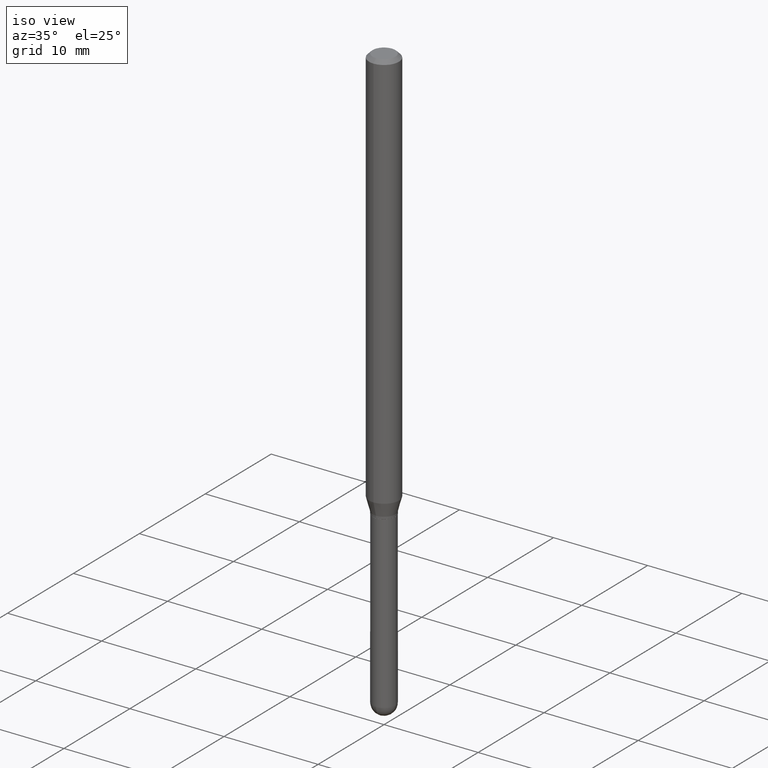
[diagram: clean part render]
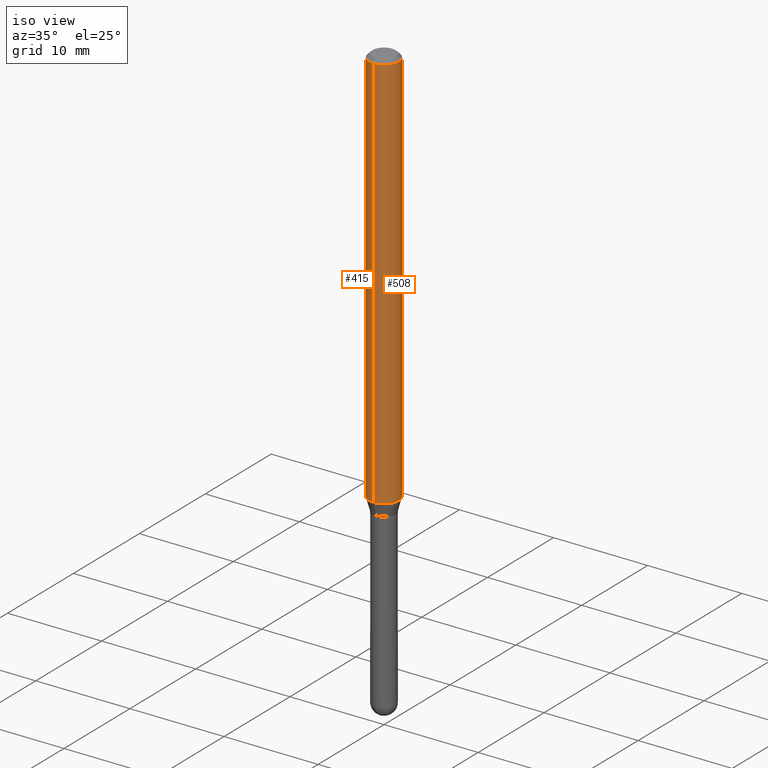
[diagram: same view with one multi-face feature highlighted, each face labeled with its STEP entity id]
A machine part, iso view. The highlighted faces form ONE feature: a constant-radius fillet chain: 2 tangent blend faces with common blend radius 1.5875 mm. The faces share edges in the B-rep.
Their STEP definitions:
[1] entity #508 (Cylinder):
#5 = DIRECTION ( 'NONE',  ( -2.445469653378123056E-29, 3.491480125614569646E-15, 1.000000000000000000 ) ) ;
#10 = CARTESIAN_POINT ( 'NONE',  ( 3.668204480067187193E-31, -5.237220188421857822E-17, -0.01500000000000000812 ) ) ;
#24 = EDGE_CURVE ( 'NONE', #131, #220, #326, .T. ) ;
#32 = DIRECTION ( 'NONE',  ( -6.982962677686265922E-15, -1.000000000000000000, 4.370956789862821150E-15 ) ) ;
#37 = ORIENTED_EDGE ( 'NONE', *, *, #375, .F. ) ;
#68 = AXIS2_PLACEMENT_3D ( 'NONE', #236, #5, #32 ) ;
#91 = CARTESIAN_POINT ( 'NONE',  ( -4.364351673553505007E-16, -0.06250000000000581479, -1.674019237886465561 ) ) ;
#95 = DIRECTION ( 'NONE',  ( -2.445469653378123056E-29, 3.491480125614569646E-15, 1.000000000000000000 ) ) ;
#100 = CARTESIAN_POINT ( 'NONE',  ( 4.440892098500625669E-16, 0.06250000000000000000, -2.182175078509106029E-16 ) ) ;
#117 = CIRCLE ( 'NONE', #432, 0.06250000000000000000 ) ;
#118 = VERTEX_POINT ( 'NONE', #296 ) ;
#131 = VERTEX_POINT ( 'NONE', #91 ) ;
#136 = DIRECTION ( 'NONE',  ( -6.982962677686265922E-15, -1.000000000000000000, 3.491480125614569646E-15 ) ) ;
#169 = VECTOR ( 'NONE', #216, 39.37007874015748143 ) ;
#201 = EDGE_LOOP ( 'NONE', ( #428, #337, #37, #280 ) ) ;
#212 = CYLINDRICAL_SURFACE ( 'NONE', #295, 0.06250000000000000000 ) ;
#215 = EDGE_CURVE ( 'NONE', #332, #118, #262, .T. ) ;
#216 = DIRECTION ( 'NONE',  ( -2.445469653378123056E-29, 3.491480125614569646E-15, 1.000000000000000000 ) ) ;
#220 = VERTEX_POINT ( 'NONE', #346 ) ;
#225 = DIRECTION ( 'NONE',  ( -2.445469653378123056E-29, 3.491480125614569646E-15, 1.000000000000000000 ) ) ;
#236 = CARTESIAN_POINT ( 'NONE',  ( 4.093763245422525431E-29, -5.844804898977045154E-15, -1.674019237886465783 ) ) ;
#241 = DIRECTION ( 'NONE',  ( -2.445469653378123056E-29, 3.491480125614569646E-15, 1.000000000000000000 ) ) ;
#252 = FACE_OUTER_BOUND ( 'NONE', #201, .T. ) ;
#262 = LINE ( 'NONE', #100, #270 ) ;
#270 = VECTOR ( 'NONE', #225, 39.37007874015748143 ) ;
#280 = ORIENTED_EDGE ( 'NONE', *, *, #24, .F. ) ;
#290 = CARTESIAN_POINT ( 'NONE',  ( -4.364351673553916201E-16, -0.06250000000000000000, 2.182175078509106029E-16 ) ) ;
#295 = AXIS2_PLACEMENT_3D ( 'NONE', #329, #95, #136 ) ;
#296 = CARTESIAN_POINT ( 'NONE',  ( 4.440892098501038342E-16, 0.06249999999999995143, -0.01500000000000022669 ) ) ;
#307 = CARTESIAN_POINT ( 'NONE',  ( 4.440892098501036369E-16, 0.06249999999999418521, -1.674019237886466227 ) ) ;
#326 = LINE ( 'NONE', #290, #169 ) ;
#329 = CARTESIAN_POINT ( 'NONE',  ( 0.000000000000000000, 0.000000000000000000, 0.000000000000000000 ) ) ;
#332 = VERTEX_POINT ( 'NONE', #307 ) ;
#337 = ORIENTED_EDGE ( 'NONE', *, *, #215, .T. ) ;
#346 = CARTESIAN_POINT ( 'NONE',  ( -4.364351673553912750E-16, -0.06250000000000005551, -0.01499999999999979128 ) ) ;
#356 = CIRCLE ( 'NONE', #68, 0.06250000000000000000 ) ;
#375 = EDGE_CURVE ( 'NONE', #220, #118, #117, .T. ) ;
#385 = EDGE_CURVE ( 'NONE', #131, #332, #356, .T. ) ;
#391 = DIRECTION ( 'NONE',  ( -6.982962677686265922E-15, -1.000000000000000000, 3.483106191921935554E-15 ) ) ;
#428 = ORIENTED_EDGE ( 'NONE', *, *, #385, .T. ) ;
#432 = AXIS2_PLACEMENT_3D ( 'NONE', #10, #241, #391 ) ;
#508 = ADVANCED_FACE ( 'NONE', ( #252 ), #212, .T. ) ;
[2] entity #415 (Cylinder):
#2 = EDGE_LOOP ( 'NONE', ( #495, #195, #92, #414 ) ) ;
#24 = EDGE_CURVE ( 'NONE', #131, #220, #326, .T. ) ;
#35 = FACE_OUTER_BOUND ( 'NONE', #2, .T. ) ;
#40 = DIRECTION ( 'NONE',  ( -2.445469653378123056E-29, 3.491480125614569646E-15, 1.000000000000000000 ) ) ;
#61 = AXIS2_PLACEMENT_3D ( 'NONE', #429, #40, #470 ) ;
#80 = EDGE_CURVE ( 'NONE', #332, #131, #344, .T. ) ;
#89 = EDGE_CURVE ( 'NONE', #118, #220, #198, .T. ) ;
#91 = CARTESIAN_POINT ( 'NONE',  ( -4.364351673553505007E-16, -0.06250000000000581479, -1.674019237886465561 ) ) ;
#92 = ORIENTED_EDGE ( 'NONE', *, *, #24, .T. ) ;
#100 = CARTESIAN_POINT ( 'NONE',  ( 4.440892098500625669E-16, 0.06250000000000000000, -2.182175078509106029E-16 ) ) ;
#118 = VERTEX_POINT ( 'NONE', #296 ) ;
#126 = DIRECTION ( 'NONE',  ( -2.445469653378123056E-29, 3.491480125614569646E-15, 1.000000000000000000 ) ) ;
#131 = VERTEX_POINT ( 'NONE', #91 ) ;
#169 = VECTOR ( 'NONE', #216, 39.37007874015748143 ) ;
#195 = ORIENTED_EDGE ( 'NONE', *, *, #80, .T. ) ;
#198 = CIRCLE ( 'NONE', #503, 0.06250000000000000000 ) ;
#215 = EDGE_CURVE ( 'NONE', #332, #118, #262, .T. ) ;
#216 = DIRECTION ( 'NONE',  ( -2.445469653378123056E-29, 3.491480125614569646E-15, 1.000000000000000000 ) ) ;
#220 = VERTEX_POINT ( 'NONE', #346 ) ;
#225 = DIRECTION ( 'NONE',  ( -2.445469653378123056E-29, 3.491480125614569646E-15, 1.000000000000000000 ) ) ;
#262 = LINE ( 'NONE', #100, #270 ) ;
#270 = VECTOR ( 'NONE', #225, 39.37007874015748143 ) ;
#290 = CARTESIAN_POINT ( 'NONE',  ( -4.364351673553916201E-16, -0.06250000000000000000, 2.182175078509106029E-16 ) ) ;
#296 = CARTESIAN_POINT ( 'NONE',  ( 4.440892098501038342E-16, 0.06249999999999995143, -0.01500000000000022669 ) ) ;
#300 = DIRECTION ( 'NONE',  ( -6.982962677686265922E-15, -1.000000000000000000, 3.483106191921935554E-15 ) ) ;
#307 = CARTESIAN_POINT ( 'NONE',  ( 4.440892098501036369E-16, 0.06249999999999418521, -1.674019237886466227 ) ) ;
#313 = CYLINDRICAL_SURFACE ( 'NONE', #61, 0.06250000000000000000 ) ;
#323 = CARTESIAN_POINT ( 'NONE',  ( 4.093763245422525431E-29, -5.844804898977045154E-15, -1.674019237886465783 ) ) ;
#326 = LINE ( 'NONE', #290, #169 ) ;
#332 = VERTEX_POINT ( 'NONE', #307 ) ;
#344 = CIRCLE ( 'NONE', #465, 0.06250000000000000000 ) ;
#346 = CARTESIAN_POINT ( 'NONE',  ( -4.364351673553912750E-16, -0.06250000000000005551, -0.01499999999999979128 ) ) ;
#405 = DIRECTION ( 'NONE',  ( -2.445469653378123056E-29, 3.491480125614569646E-15, 1.000000000000000000 ) ) ;
#414 = ORIENTED_EDGE ( 'NONE', *, *, #89, .F. ) ;
#415 = ADVANCED_FACE ( 'NONE', ( #35 ), #313, .T. ) ;
#429 = CARTESIAN_POINT ( 'NONE',  ( 0.000000000000000000, 0.000000000000000000, 0.000000000000000000 ) ) ;
#465 = AXIS2_PLACEMENT_3D ( 'NONE', #323, #405, #482 ) ;
#470 = DIRECTION ( 'NONE',  ( -6.982962677686265922E-15, -1.000000000000000000, 3.491480125614569646E-15 ) ) ;
#482 = DIRECTION ( 'NONE',  ( -6.982962677686265922E-15, -1.000000000000000000, 4.370956789862821150E-15 ) ) ;
#493 = CARTESIAN_POINT ( 'NONE',  ( 3.668204480067187193E-31, -5.237220188421857822E-17, -0.01500000000000000812 ) ) ;
#495 = ORIENTED_EDGE ( 'NONE', *, *, #215, .F. ) ;
#503 = AXIS2_PLACEMENT_3D ( 'NONE', #493, #126, #300 ) ;